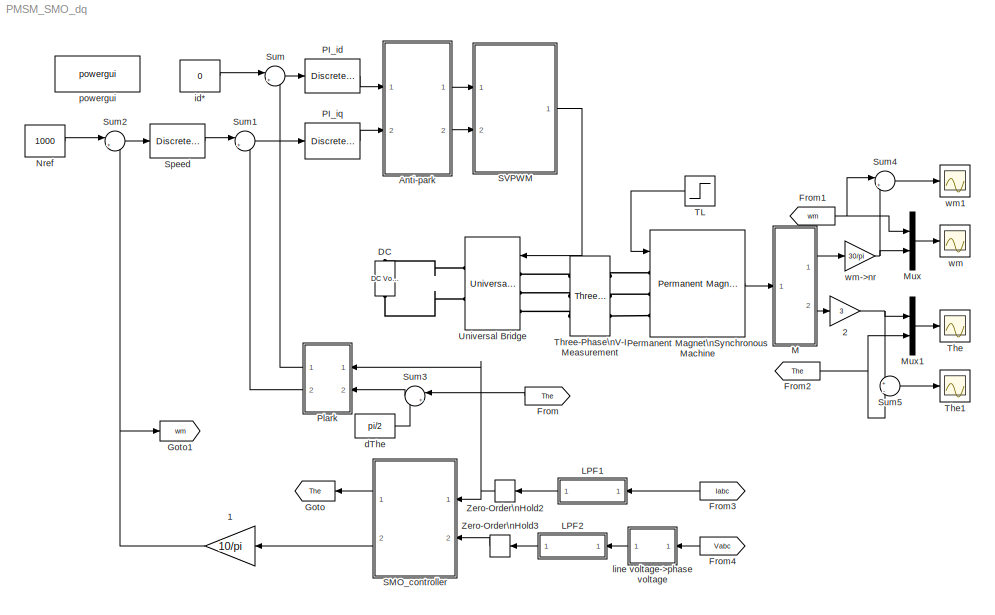
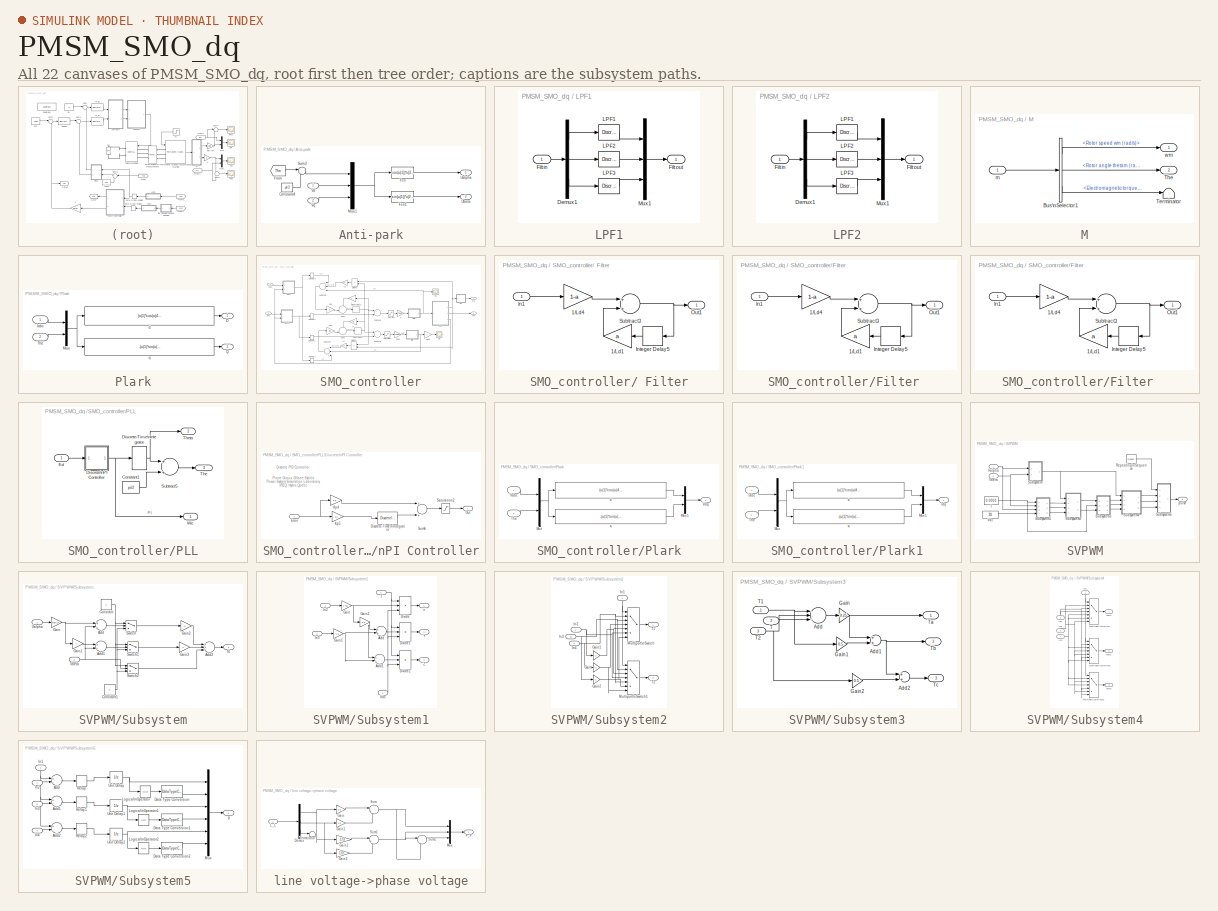
[diagram: thumbnail index - all 22 canvases of the model, root first then tree order]
MODEL PMSM_SMO_dq
KIND model
CONFIG InitFcn = Ts = 10e-6;\n\nRa = 0.011;\nLd = 0.0016;\nLq = 0.001;\nflux =0.077;\n\nm0 = 2;\nksild = 700;\nA = exp(-Ra/Ld*Ts);\nB = (1-A)/Ra;\nAq = exp(-Ra/Lq*Ts);\nBq = (1-Aq)/Ra;
BLOCK [Gain] 1
  Gain = 10/pi
  OutDataTypeStr = Inherit: Inherit via internal rule
  ParamDataTypeStr = Inherit: Inherit via internal rule
  SID = 613
  SaturateOnIntegerOverflow = off
BLOCK [Gain] 2
  Gain = 3
  OutDataTypeStr = Inherit: Inherit via internal rule
  ParamDataTypeStr = Inherit: Inherit via internal rule
  SID = 614
  SaturateOnIntegerOverflow = off
BLOCK [SubSystem] Anti-park
  Ports = [2, 2]
  RequestExecContextInheritance = off
  SID = 615
BLOCK [Constant] Anti-park/Constant4
  SID = 618
  Value = -pi/2
BLOCK [Fcn] Anti-park/Fcn
  Expr = cos(u[1])*u[2]-sin(u[1])*u[3]
  SID = 619
BLOCK [Fcn] Anti-park/Fcn1
  Expr = sin(u[1])*u[2]+cos(u[1])*u[3]
  SID = 620
BLOCK [From] Anti-park/From
  GotoTag = The
  SID = 621
  TagVisibility = global
BLOCK [Mux] Anti-park/Mux1
  DisplayOption = bar
  Inputs = 3
  Ports = [3, 1]
  SID = 622
BLOCK [Sum] Anti-park/Sum3
  IconShape = round
  InputSameDT = off
  Inputs = |++
  OutDataTypeStr = Inherit: Inherit via internal rule
  Ports = [2, 1]
  SID = 623
  SaturateOnIntegerOverflow = off
BLOCK [Outport] Anti-park/Ualpha
  IconDisplay = Port number
  SID = 624
BLOCK [Outport] Anti-park/Ubeta
  IconDisplay = Port number
  Port = 2
  SID = 625
BLOCK [Inport] Anti-park/Vd
  IconDisplay = Port number
  SID = 616
BLOCK [Inport] Anti-park/Vq
  IconDisplay = Port number
  Port = 2
  SID = 617
BLOCK [Reference] DC   REF=powerlib/Electrical\nSources/DC Voltage Source
  Amplitude = 311
  Measurements = None
  Ports = [0, 0, 0, 0, 0, 1, 1]
  SID = 626
  SourceBlock = powerlib/Electrical\nSources/DC Voltage Source
  SourceType = DC Voltage Source
BLOCK [From] From
  GotoTag = The
  SID = 627
  TagVisibility = global
BLOCK [From] From1
  GotoTag = wm
  SID = 628
  TagVisibility = global
BLOCK [From] From2
  GotoTag = The
  SID = 629
  TagVisibility = global
BLOCK [From] From3
  GotoTag = Iabc
  SID = 630
  TagVisibility = global
BLOCK [From] From4
  GotoTag = Vabc
  SID = 631
  TagVisibility = global
BLOCK [Goto] Goto
  GotoTag = The
  SID = 632
  TagVisibility = global
BLOCK [Goto] Goto1
  GotoTag = wm
  SID = 633
  TagVisibility = global
BLOCK [SubSystem] LPF1
  Ports = [1, 1]
  RequestExecContextInheritance = off
  SID = 634
BLOCK [Demux] LPF1/Demux1
  Outputs = 3
  Ports = [1, 3]
  SID = 636
BLOCK [Inport] LPF1/Filt in
  IconDisplay = Port number
  SID = 635
BLOCK [Outport] LPF1/Filt out
  IconDisplay = Port number
  SID = 641
BLOCK [Reference] LPF1/LPF1  REF=powerlib_extras/Discrete \nControl Blocks/Discrete\n1st-Order\nFilter
  FilterType = Lowpass
  Initialize = off
  PlotResponse = off
  Ports = [1, 1]
  SID = 637
  SourceBlock = powerlib_extras/Discrete \nControl Blocks/Discrete\n1st-Order\nFilter
  SourceType = Discrete 1st-Order Filter
  Tc = 1/(2*pi*wcc)
  Ts = Ts
  Vac_Init = [0.8 -25 60]
  Vdc_Init = -0.4
  param1 = [1 500 1]
BLOCK [Reference] LPF1/LPF2  REF=powerlib_extras/Discrete \nControl Blocks/Discrete\n1st-Order\nFilter
  FilterType = Lowpass
  Initialize = off
  PlotResponse = off
  Ports = [1, 1]
  SID = 638
  SourceBlock = powerlib_extras/Discrete \nControl Blocks/Discrete\n1st-Order\nFilter
  SourceType = Discrete 1st-Order Filter
  Tc = 1/(2*pi*wcc)
  Ts = Ts
  Vac_Init = [0.8 -25 60]
  Vdc_Init = -0.4
  param1 = [1 500 1]
BLOCK [Reference] LPF1/LPF3  REF=powerlib_extras/Discrete \nControl Blocks/Discrete\n1st-Order\nFilter
  FilterType = Lowpass
  Initialize = off
  PlotResponse = off
  Ports = [1, 1]
  SID = 639
  SourceBlock = powerlib_extras/Discrete \nControl Blocks/Discrete\n1st-Order\nFilter
  SourceType = Discrete 1st-Order Filter
  Tc = 1/(2*pi*wcc)
  Ts = Ts
  Vac_Init = [0.8 -25 60]
  Vdc_Init = -0.4
  param1 = [1 4000 1]
BLOCK [Mux] LPF1/Mux1
  DisplayOption = bar
  Inputs = 3
  Ports = [3, 1]
  SID = 640
BLOCK [SubSystem] LPF2
  Ports = [1, 1]
  RequestExecContextInheritance = off
  SID = 642
BLOCK [Demux] LPF2/Demux1
  Outputs = 3
  Ports = [1, 3]
  SID = 644
BLOCK [Inport] LPF2/Filt in
  IconDisplay = Port number
  SID = 643
BLOCK [Outport] LPF2/Filt out
  IconDisplay = Port number
  SID = 649
BLOCK [Reference] LPF2/LPF1  REF=powerlib_extras/Discrete \nControl Blocks/Discrete\n1st-Order\nFilter
  FilterType = Lowpass
  Initialize = off
  PlotResponse = off
  Ports = [1, 1]
  SID = 645
  SourceBlock = powerlib_extras/Discrete \nControl Blocks/Discrete\n1st-Order\nFilter
  SourceType = Discrete 1st-Order Filter
  Tc = 1/(2*pi*wcc)
  Ts = Ts
  Vac_Init = [0.8 -25 60]
  Vdc_Init = -0.4
  param1 = [1 500 1]
BLOCK [Reference] LPF2/LPF2  REF=powerlib_extras/Discrete \nControl Blocks/Discrete\n1st-Order\nFilter
  FilterType = Lowpass
  Initialize = off
  PlotResponse = off
  Ports = [1, 1]
  SID = 646
  SourceBlock = powerlib_extras/Discrete \nControl Blocks/Discrete\n1st-Order\nFilter
  SourceType = Discrete 1st-Order Filter
  Tc = 1/(2*pi*wcc)
  Ts = Ts
  Vac_Init = [0.8 -25 60]
  Vdc_Init = -0.4
  param1 = [1 500 1]
BLOCK [Reference] LPF2/LPF3  REF=powerlib_extras/Discrete \nControl Blocks/Discrete\n1st-Order\nFilter
  FilterType = Lowpass
  Initialize = off
  PlotResponse = off
  Ports = [1, 1]
  SID = 647
  SourceBlock = powerlib_extras/Discrete \nControl Blocks/Discrete\n1st-Order\nFilter
  SourceType = Discrete 1st-Order Filter
  Tc = 1/(2*pi*wcc)
  Ts = Ts
  Vac_Init = [0.8 -25 60]
  Vdc_Init = -0.4
  param1 = [1 4000 1]
BLOCK [Mux] LPF2/Mux1
  DisplayOption = bar
  Inputs = 3
  Ports = [3, 1]
  SID = 648
BLOCK [SubSystem] M
  Ports = [1, 2]
  RequestExecContextInheritance = off
  SID = 650
BLOCK [BusSelector] M/Bus\nSelector1
  OutputSignals = Rotor speed wm (rad/s),Rotor angle thetam (rad),Electromagnetic torque Te (N*m)
  Ports = [1, 3]
  SID = 653
BLOCK [Terminator] M/Terminator
  SID = 655
BLOCK [Outport] M/The
  IconDisplay = Port number
  Port = 2
  SID = 657
BLOCK [Inport] M/m
  IconDisplay = Port number
  SID = 651
BLOCK [Outport] M/wm
  IconDisplay = Port number
  SID = 656
BLOCK [Mux] Mux
  DisplayOption = bar
  Inputs = 2
  Ports = [2, 1]
  SID = 659
BLOCK [Mux] Mux1
  DisplayOption = bar
  Inputs = 2
  Ports = [2, 1]
  SID = 660
BLOCK [Constant] Nref
  SID = 661
  Value = 1000
BLOCK [Reference] PI_id   REF=powerlib_extras/Discrete \nControl Blocks/Discrete\nPI Controller
  Init = 0
  Ki = 0.011*20000
  Kp = 0.0016*20000
  Par_Limits = [250 -250]
  Ports = [1, 1]
  SID = 662
  SourceBlock = powerlib_extras/Discrete \nControl Blocks/Discrete\nPI Controller
  SourceType = Discrete PI Controller
  Ts = Ts
BLOCK [Reference] PI_iq  REF=powerlib_extras/Discrete \nControl Blocks/Discrete\nPI Controller
  Init = 0
  Ki = 0.011*20000
  Kp = 0.001*20000
  Par_Limits = [250 -250]
  Ports = [1, 1]
  SID = 663
  SourceBlock = powerlib_extras/Discrete \nControl Blocks/Discrete\nPI Controller
  SourceType = Discrete PI Controller
  Ts = Ts
BLOCK [Reference] Permanent Magnet\nSynchronous Machine  REF=powerlib/Machines/Permanent Magnet\nSynchronous Machine
  Flat = 120
  Flux = 0.077
  FluxDistribution = Sinusoidal
  Inductance = 8.5e-3
  InitialConditions = [0,0, 0,0]
  InitialConditions5ph = [0 0 0 0 0 0]
  La = 0.000835
  MachineConstant = Flux linkage established by magnets (V.s)
  MeasurementBus = off
  Mechanical = [0.0008 0 3]
  MechanicalLoad = Torque Tm
  NbPhases = 3
  PolePairs = 3
  Ports = [1, 1, 0, 0, 0, 3]
  PresetModel = No
  RefAngle = 90 degrees behind phase A axis (modified Park)
  Resistance = 0.011
  RotorType = Salient-pole
  SID = 664
  ShowDetailedParameters = on
  SourceBlock = powerlib/Machines/Permanent Magnet\nSynchronous Machine
  SourceType = Permanent Magnet Synchronous Machine
  TorqueCst = 0.3465
  TsBlock = -1
  TsPowergui = 0
  VoltageCst = 41.8988
  dqInductances = [0.0016,0.001]
BLOCK [SubSystem] Plark
  Ports = [2, 2]
  RequestExecContextInheritance = off
  SID = 665
BLOCK [Outport] Plark/D
  IconDisplay = Port number
  SID = 671
BLOCK [Inport] Plark/Iabc
  IconDisplay = Port number
  SID = 666
BLOCK [Mux] Plark/Mux
  DisplayOption = bar
  Inputs = 2
  Ports = [2, 1]
  SID = 668
BLOCK [Outport] Plark/Q
  IconDisplay = Port number
  Port = 2
  SID = 672
BLOCK [Inport] Plark/The
  IconDisplay = Port number
  Port = 2
  SID = 667
BLOCK [Fcn] Plark/d
  Expr = (u(1)*cos(u(4))+u(2)*cos(u(4)-2/3*pi)+u(3)*cos(u(4)+2/3*pi))*2/3
  SID = 669
BLOCK [Fcn] Plark/q
  Expr = -(u(1)*sin(u(4))+u(2)*sin(u(4)-2/3*pi)+u(3)*sin(u(4)+2/3*pi))*2/3
  SID = 670
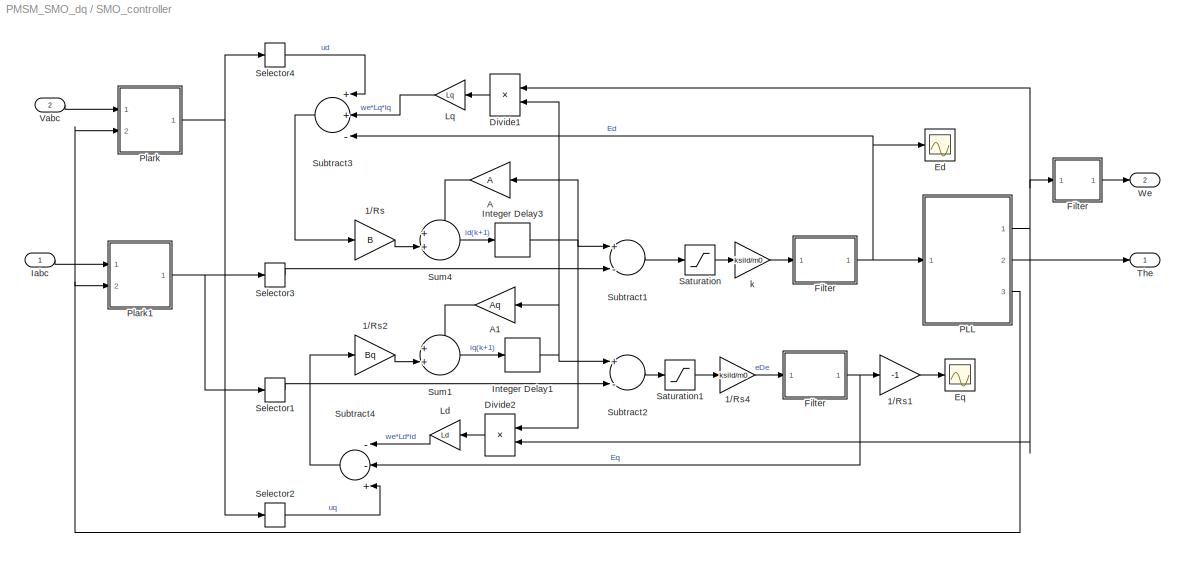
BLOCK [SubSystem] SMO_controller
  Ports = [2, 2]
  RequestExecContextInheritance = off
  SID = 673
BLOCK [SubSystem] SMO_controller/ Filter
  Ports = [1, 1]
  RequestExecContextInheritance = off
  SID = 676
BLOCK [Gain] SMO_controller/ Filter/1//Ld1
  Gain = a
  OutDataTypeStr = Inherit: Inherit via internal rule
  ParamDataTypeStr = Inherit: Inherit via internal rule
  SID = 678
  SaturateOnIntegerOverflow = off
BLOCK [Gain] SMO_controller/ Filter/1//Ld4
  Gain = 1-a
  OutDataTypeStr = Inherit: Inherit via internal rule
  ParamDataTypeStr = Inherit: Inherit via internal rule
  SID = 679
  SampleTime = Ts
  SaturateOnIntegerOverflow = off
BLOCK [Inport] SMO_controller/ Filter/In1
  IconDisplay = Port number
  SID = 677
BLOCK [Delay] SMO_controller/ Filter/Integer Delay5
  DelayLength = 1
  InputPortMap = u0
  InputProcessing = Inherited
  Ports = [1, 1]
  SID = 680
  SampleTime = Ts
BLOCK [Outport] SMO_controller/ Filter/Out1
  IconDisplay = Port number
  SID = 682
BLOCK [Sum] SMO_controller/ Filter/Subtract3
  InputSameDT = off
  OutDataTypeStr = Inherit: Inherit via internal rule
  Ports = [2, 1]
  SID = 681
  SaturateOnIntegerOverflow = off
BLOCK [Gain] SMO_controller/1//Rs
  Gain = B
  OutDataTypeStr = Inherit: Inherit via internal rule
  ParamDataTypeStr = Inherit: Inherit via internal rule
  SID = 683
  SaturateOnIntegerOverflow = off
BLOCK [Gain] SMO_controller/1//Rs1
  Gain = -1
  OutDataTypeStr = Inherit: Inherit via internal rule
  ParamDataTypeStr = Inherit: Inherit via internal rule
  SID = 895
  SaturateOnIntegerOverflow = off
BLOCK [Gain] SMO_controller/1//Rs2
  Gain = Bq
  OutDataTypeStr = Inherit: Inherit via internal rule
  ParamDataTypeStr = Inherit: Inherit via internal rule
  SID = 684
  SaturateOnIntegerOverflow = off
BLOCK [Gain] SMO_controller/1//Rs4
  Gain = ksild/m0
  OutDataTypeStr = Inherit: Inherit via internal rule
  ParamDataTypeStr = Inherit: Inherit via internal rule
  SID = 685
  SaturateOnIntegerOverflow = off
BLOCK [Gain] SMO_controller/A
  Gain = A
  OutDataTypeStr = Inherit: Inherit via internal rule
  ParamDataTypeStr = Inherit: Inherit via internal rule
  SID = 686
  SaturateOnIntegerOverflow = off
BLOCK [Gain] SMO_controller/A1
  Gain = Aq
  OutDataTypeStr = Inherit: Inherit via internal rule
  ParamDataTypeStr = Inherit: Inherit via internal rule
  SID = 687
  SaturateOnIntegerOverflow = off
BLOCK [Product] SMO_controller/Divide1
  InputSameDT = off
  Inputs = **
  OutDataTypeStr = Inherit: Inherit via internal rule
  Ports = [2, 1]
  RndMeth = Floor
  SID = 691
  SaturateOnIntegerOverflow = off
BLOCK [Product] SMO_controller/Divide2
  InputSameDT = off
  Inputs = **
  OutDataTypeStr = Inherit: Inherit via internal rule
  Ports = [2, 1]
  RndMeth = Floor
  SID = 692
  SaturateOnIntegerOverflow = off
BLOCK [Scope] SMO_controller/Ed
  DataFormat = StructureWithTime
  Floating = off
  LimitDataPoints = off
  NumInputPorts = 1
  Ports = [1]
  SID = 892
  SampleTime = 0
  SaveName = Ed
  SaveToWorkspace = on
  ShowLegends = off
  TimeRange = 0.1
  YMax = 60
  YMin = 30
  ZoomMode = xonly
BLOCK [Scope] SMO_controller/Eq
  DataFormat = StructureWithTime
  Floating = off
  LimitDataPoints = off
  NumInputPorts = 1
  Ports = [1]
  SID = 894
  SampleTime = 0
  SaveName = Eq
  SaveToWorkspace = on
  ShowLegends = off
  TimeRange = 0.1
  YMax = 60
  YMin = 30
  ZoomMode = xonly
BLOCK [SubSystem] SMO_controller/Filter 
  Ports = [1, 1]
  RequestExecContextInheritance = off
  SID = 693
BLOCK [SubSystem] SMO_controller/Filter  
  Ports = [1, 1]
  RequestExecContextInheritance = off
  SID = 700
BLOCK [Gain] SMO_controller/Filter  /1//Ld1
  Gain = a
  OutDataTypeStr = Inherit: Inherit via internal rule
  ParamDataTypeStr = Inherit: Inherit via internal rule
  SID = 702
  SaturateOnIntegerOverflow = off
BLOCK [Gain] SMO_controller/Filter  /1//Ld4
  Gain = 1-a
  OutDataTypeStr = Inherit: Inherit via internal rule
  ParamDataTypeStr = Inherit: Inherit via internal rule
  SID = 703
  SampleTime = Ts
  SaturateOnIntegerOverflow = off
BLOCK [Inport] SMO_controller/Filter  /In1
  IconDisplay = Port number
  SID = 701
BLOCK [Delay] SMO_controller/Filter  /Integer Delay5
  DelayLength = 1
  InputPortMap = u0
  InputProcessing = Inherited
  Ports = [1, 1]
  SID = 704
  SampleTime = Ts
BLOCK [Outport] SMO_controller/Filter  /Out1
  IconDisplay = Port number
  SID = 706
BLOCK [Sum] SMO_controller/Filter  /Subtract3
  InputSameDT = off
  OutDataTypeStr = Inherit: Inherit via internal rule
  Ports = [2, 1]
  SID = 705
  SaturateOnIntegerOverflow = off
BLOCK [Gain] SMO_controller/Filter /1//Ld1
  Gain = a
  OutDataTypeStr = Inherit: Inherit via internal rule
  ParamDataTypeStr = Inherit: Inherit via internal rule
  SID = 695
  SaturateOnIntegerOverflow = off
BLOCK [Gain] SMO_controller/Filter /1//Ld4
  Gain = 1-a
  OutDataTypeStr = Inherit: Inherit via internal rule
  ParamDataTypeStr = Inherit: Inherit via internal rule
  SID = 696
  SampleTime = Ts
  SaturateOnIntegerOverflow = off
BLOCK [Inport] SMO_controller/Filter /In1
  IconDisplay = Port number
  SID = 694
BLOCK [Delay] SMO_controller/Filter /Integer Delay5
  DelayLength = 1
  InputPortMap = u0
  InputProcessing = Inherited
  Ports = [1, 1]
  SID = 697
  SampleTime = Ts
BLOCK [Outport] SMO_controller/Filter /Out1
  IconDisplay = Port number
  SID = 699
BLOCK [Sum] SMO_controller/Filter /Subtract3
  InputSameDT = off
  OutDataTypeStr = Inherit: Inherit via internal rule
  Ports = [2, 1]
  SID = 698
  SaturateOnIntegerOverflow = off
BLOCK [Inport] SMO_controller/Iabc
  IconDisplay = Port number
  SID = 674
BLOCK [Delay] SMO_controller/Integer Delay1
  DelayLength = 1
  InputPortMap = u0
  InputProcessing = Inherited
  Ports = [1, 1]
  SID = 707
  SampleTime = Ts
BLOCK [Delay] SMO_controller/Integer Delay3
  DelayLength = 1
  InputPortMap = u0
  InputProcessing = Inherited
  Ports = [1, 1]
  SID = 708
  SampleTime = Ts
BLOCK [Gain] SMO_controller/Ld
  Gain = Ld
  OutDataTypeStr = Inherit: Inherit via internal rule
  ParamDataTypeStr = Inherit: Inherit via internal rule
  SID = 709
  SaturateOnIntegerOverflow = off
BLOCK [Gain] SMO_controller/Lq
  Gain = Lq
  OutDataTypeStr = Inherit: Inherit via internal rule
  ParamDataTypeStr = Inherit: Inherit via internal rule
  SID = 710
  SaturateOnIntegerOverflow = off
BLOCK [SubSystem] SMO_controller/PLL
  Ports = [1, 3]
  RequestExecContextInheritance = off
  SID = 887
BLOCK [Constant] SMO_controller/PLL/Constant1
  SID = 688
  Value = pi/2
BLOCK [DiscreteIntegrator] SMO_controller/PLL/Discrete-Time\nIntegrator
  Ports = [1, 1]
  SID = 690
  SampleTime = Ts
BLOCK [SubSystem] SMO_controller/PLL/Discrete\nPI Controller
  AncestorBlock = powerlib_extras/Discrete \nControl Blocks/Discrete\nPI Controller
  OpenFcn = power_openblockproxy();
  Ports = [1, 1]
  RequestExecContextInheritance = off
  SID = 689
BLOCK [DiscreteIntegrator] SMO_controller/PLL/Discrete\nPI Controller/Discrete-Time\nIntegrator
  LimitOutput = on
  LowerSaturationLimit = LowerLimit
  Ports = [1, 1]
  SID = 689:2
  SampleTime = Ts
  UpperSaturationLimit = UpperLimit
BLOCK [Inport] SMO_controller/PLL/Discrete\nPI Controller/Error
  IconDisplay = Port number
  SID = 689:1
BLOCK [Gain] SMO_controller/PLL/Discrete\nPI Controller/Kp4
  Gain = Kp
  SID = 689:3
BLOCK [Gain] SMO_controller/PLL/Discrete\nPI Controller/Kp5
  Gain = Ki
  SID = 689:4
BLOCK [Outport] SMO_controller/PLL/Discrete\nPI Controller/Out
  IconDisplay = Port number
  InitialOutput = 0
  SID = 689:7
BLOCK [Saturate] SMO_controller/PLL/Discrete\nPI Controller/Saturation2
  InputPortMap = u0
  LowerLimit = LowerLimit
  Ports = [1, 1]
  SID = 689:5
  UpperLimit = UpperLimit
BLOCK [Sum] SMO_controller/PLL/Discrete\nPI Controller/Sum6
  Ports = [2, 1]
  SID = 689:6
BLOCK [Inport] SMO_controller/PLL/Ed
  IconDisplay = Port number
  SID = 888
BLOCK [Sum] SMO_controller/PLL/Subtract5
  InputSameDT = off
  OutDataTypeStr = Inherit: Inherit via internal rule
  Ports = [2, 1]
  SID = 738
  SaturateOnIntegerOverflow = off
BLOCK [Outport] SMO_controller/PLL/The
  IconDisplay = Port number
  Port = 3
  SID = 891
BLOCK [Outport] SMO_controller/PLL/Theta
  IconDisplay = Port number
  Port = 2
  SID = 890
BLOCK [Outport] SMO_controller/PLL/We
  IconDisplay = Port number
  SID = 889
BLOCK [SubSystem] SMO_controller/Plark
  Ports = [2, 1]
  RequestExecContextInheritance = off
  SID = 711
BLOCK [Mux] SMO_controller/Plark/Mux
  DisplayOption = bar
  Inputs = 2
  Ports = [2, 1]
  SID = 714
BLOCK [Mux] SMO_controller/Plark/Mux1
  DisplayOption = bar
  Inputs = 2
  Ports = [2, 1]
  SID = 715
BLOCK [Inport] SMO_controller/Plark/The
  IconDisplay = Port number
  Port = 2
  SID = 713
BLOCK [Inport] SMO_controller/Plark/Vabc
  IconDisplay = Port number
  SID = 712
BLOCK [Outport] SMO_controller/Plark/Vdq
  IconDisplay = Port number
  SID = 718
BLOCK [Fcn] SMO_controller/Plark/d
  Expr = (u(1)*cos(u(4))+u(2)*cos(u(4)-2/3*pi)+u(3)*cos(u(4)+2/3*pi))*2/3
  SID = 716
BLOCK [Fcn] SMO_controller/Plark/q
  Expr = -(u(1)*sin(u(4))+u(2)*sin(u(4)-2/3*pi)+u(3)*sin(u(4)+2/3*pi))*2/3
  SID = 717
BLOCK [SubSystem] SMO_controller/Plark1
  Ports = [2, 1]
  RequestExecContextInheritance = off
  SID = 719
BLOCK [Inport] SMO_controller/Plark1/Iabc
  IconDisplay = Port number
  SID = 720
BLOCK [Outport] SMO_controller/Plark1/Idq
  IconDisplay = Port number
  SID = 726
BLOCK [Mux] SMO_controller/Plark1/Mux
  DisplayOption = bar
  Inputs = 2
  Ports = [2, 1]
  SID = 722
BLOCK [Mux] SMO_controller/Plark1/Mux1
  DisplayOption = bar
  Inputs = 2
  Ports = [2, 1]
  SID = 723
BLOCK [Inport] SMO_controller/Plark1/The
  IconDisplay = Port number
  Port = 2
  SID = 721
BLOCK [Fcn] SMO_controller/Plark1/d
  Expr = (u(1)*cos(u(4))+u(2)*cos(u(4)-2/3*pi)+u(3)*cos(u(4)+2/3*pi))*2/3
  SID = 724
BLOCK [Fcn] SMO_controller/Plark1/q
  Expr = -(u(1)*sin(u(4))+u(2)*sin(u(4)-2/3*pi)+u(3)*sin(u(4)+2/3*pi))*2/3
  SID = 725
BLOCK [Saturate] SMO_controller/Saturation
  InputPortMap = u0
  LowerLimit = -m0
  Ports = [1, 1]
  SID = 727
  UpperLimit = m0
BLOCK [Saturate] SMO_controller/Saturation1
  InputPortMap = u0
  LowerLimit = -m0
  Ports = [1, 1]
  SID = 728
  UpperLimit = m0
BLOCK [Selector] SMO_controller/Selector1
  Indices = [2 ]
  InputPortWidth = 2
  Ports = [1, 1]
  SID = 730
BLOCK [Selector] SMO_controller/Selector2
  Indices = [2 ]
  InputPortWidth = 2
  Ports = [1, 1]
  SID = 731
BLOCK [Selector] SMO_controller/Selector3
  Indices = [1 ]
  InputPortWidth = 2
  Ports = [1, 1]
  SID = 732
BLOCK [Selector] SMO_controller/Selector4
  Indices = [1 ]
  InputPortWidth = 2
  Ports = [1, 1]
  SID = 733
BLOCK [Sum] SMO_controller/Subtract1
  InputSameDT = off
  Inputs = +-
  OutDataTypeStr = Inherit: Inherit via internal rule
  Ports = [2, 1]
  SID = 734
  SaturateOnIntegerOverflow = off
BLOCK [Sum] SMO_controller/Subtract2
  InputSameDT = off
  Inputs = +-
  OutDataTypeStr = Inherit: Inherit via internal rule
  Ports = [2, 1]
  SID = 735
  SaturateOnIntegerOverflow = off
BLOCK [Sum] SMO_controller/Subtract3
  InputSameDT = off
  Inputs = ++-
  OutDataTypeStr = Inherit: Inherit via internal rule
  Ports = [3, 1]
  SID = 736
  SaturateOnIntegerOverflow = off
BLOCK [Sum] SMO_controller/Subtract4
  InputSameDT = off
  Inputs = --+
  OutDataTypeStr = Inherit: Inherit via internal rule
  Ports = [3, 1]
  SID = 737
  SaturateOnIntegerOverflow = off
BLOCK [Sum] SMO_controller/Sum1
  IconShape = round
  InputSameDT = off
  Inputs = ++|
  OutDataTypeStr = Inherit: Inherit via internal rule
  Ports = [2, 1]
  SID = 739
  SaturateOnIntegerOverflow = off
BLOCK [Sum] SMO_controller/Sum4
  IconShape = round
  InputSameDT = off
  Inputs = ++|
  OutDataTypeStr = Inherit: Inherit via internal rule
  Ports = [2, 1]
  SID = 740
  SaturateOnIntegerOverflow = off
BLOCK [Outport] SMO_controller/The
  IconDisplay = Port number
  SID = 742
BLOCK [Inport] SMO_controller/Vabc
  IconDisplay = Port number
  Port = 2
  SID = 675
BLOCK [Outport] SMO_controller/We
  IconDisplay = Port number
  Port = 2
  SID = 743
BLOCK [Gain] SMO_controller/k
  Gain = ksild/m0
  OutDataTypeStr = Inherit: Inherit via internal rule
  ParamDataTypeStr = Inherit: Inherit via internal rule
  SID = 741
  SaturateOnIntegerOverflow = off
BLOCK [SubSystem] SVPWM
  Ports = [2, 1]
  RequestExecContextInheritance = off
  SID = 745
BLOCK [Reference] SVPWM/Repeating\nSequence  REF=simulink/Sources/Repeating\nSequence
  Ports = [0, 1]
  SID = 748
  SourceBlock = simulink/Sources/Repeating\nSequence
  SourceType = Repeating table
  rep_seq_t = [0 0.00005 0.0001]
  rep_seq_y = [0 0.00005 0]
BLOCK [SubSystem] SVPWM/Subsystem
  Ports = [2, 1]
  RequestExecContextInheritance = off
  SID = 749
BLOCK [Sum] SVPWM/Subsystem/Add
  InputSameDT = off
  Inputs = +-
  OutDataTypeStr = Inherit: Inherit via internal rule
  Ports = [2, 1]
  SID = 752
  SaturateOnIntegerOverflow = off
BLOCK [Sum] SVPWM/Subsystem/Add1
  InputSameDT = off
  Inputs = +-
  OutDataTypeStr = Inherit: Inherit via internal rule
  Ports = [2, 1]
  SID = 753
  SaturateOnIntegerOverflow = off
BLOCK [Sum] SVPWM/Subsystem/Add2
  InputSameDT = off
  Inputs = +++
  OutDataTypeStr = Inherit: Inherit via internal rule
  Ports = [3, 1]
  SID = 754
  SaturateOnIntegerOverflow = off
BLOCK [Constant] SVPWM/Subsystem/Constant
  SID = 755
BLOCK [Constant] SVPWM/Subsystem/Constant1
  SID = 756
  Value = 0
BLOCK [Gain] SVPWM/Subsystem/Gain
  Gain = sqrt(3)
  OutDataTypeStr = Inherit: Inherit via internal rule
  ParamDataTypeStr = Inherit: Inherit via internal rule
  SID = 757
  SaturateOnIntegerOverflow = off
BLOCK [Gain] SVPWM/Subsystem/Gain1
  Gain = -1
  OutDataTypeStr = Inherit: Inherit via internal rule
  ParamDataTypeStr = Inherit: Inherit via internal rule
  SID = 758
  SaturateOnIntegerOverflow = off
BLOCK [Gain] SVPWM/Subsystem/Gain2
  Gain = 2
  OutDataTypeStr = Inherit: Inherit via internal rule
  ParamDataTypeStr = Inherit: Inherit via internal rule
  SID = 759
  SaturateOnIntegerOverflow = off
BLOCK [Gain] SVPWM/Subsystem/Gain3
  Gain = 4
  OutDataTypeStr = Inherit: Inherit via internal rule
  ParamDataTypeStr = Inherit: Inherit via internal rule
  SID = 760
  SaturateOnIntegerOverflow = off
BLOCK [Outport] SVPWM/Subsystem/N
  IconDisplay = Port number
  SID = 764
BLOCK [Switch] SVPWM/Subsystem/Switch
  Criteria = u2 > Threshold
  InputSameDT = off
  SID = 761
  SaturateOnIntegerOverflow = off
BLOCK [Switch] SVPWM/Subsystem/Switch1
  Criteria = u2 > Threshold
  InputSameDT = off
  SID = 762
  SaturateOnIntegerOverflow = off
BLOCK [Switch] SVPWM/Subsystem/Switch2
  Criteria = u2 > Threshold
  InputSameDT = off
  SID = 763
  SaturateOnIntegerOverflow = off
BLOCK [Inport] SVPWM/Subsystem/Valpha
  IconDisplay = Port number
  SID = 750
BLOCK [Inport] SVPWM/Subsystem/Vbeta
  IconDisplay = Port number
  Port = 2
  SID = 751
BLOCK [SubSystem] SVPWM/Subsystem1
  Ports = [4, 3]
  RequestExecContextInheritance = off
  SID = 766
BLOCK [Sum] SVPWM/Subsystem1/Add
  InputSameDT = off
  OutDataTypeStr = Inherit: Inherit via internal rule
  Ports = [2, 1]
  SID = 771
  SaturateOnIntegerOverflow = off
BLOCK [Sum] SVPWM/Subsystem1/Add1
  InputSameDT = off
  Inputs = +-
  OutDataTypeStr = Inherit: Inherit via internal rule
  Ports = [2, 1]
  SID = 772
  SaturateOnIntegerOverflow = off
BLOCK [Product] SVPWM/Subsystem1/Divide
  InputSameDT = off
  Inputs = **/
  OutDataTypeStr = Inherit: Inherit via internal rule
  Ports = [3, 1]
  RndMeth = Floor
  SID = 773
  SaturateOnIntegerOverflow = off
BLOCK [Product] SVPWM/Subsystem1/Divide1
  InputSameDT = off
  Inputs = **/
  OutDataTypeStr = Inherit: Inherit via internal rule
  Ports = [3, 1]
  RndMeth = Floor
  SID = 774
  SaturateOnIntegerOverflow = off
BLOCK [Product] SVPWM/Subsystem1/Divide2
  InputSameDT = off
  Inputs = **/
  OutDataTypeStr = Inherit: Inherit via internal rule
  Ports = [3, 1]
  RndMeth = Floor
  SID = 775
  SaturateOnIntegerOverflow = off
BLOCK [Gain] SVPWM/Subsystem1/Gain
  Gain = 1.732
  OutDataTypeStr = Inherit: Inherit via internal rule
  ParamDataTypeStr = Inherit: Inherit via internal rule
  SID = 776
  SaturateOnIntegerOverflow = off
BLOCK [Gain] SVPWM/Subsystem1/Gain1
  Gain = 1.5
  OutDataTypeStr = Inherit: Inherit via internal rule
  ParamDataTypeStr = Inherit: Inherit via internal rule
  SID = 777
  SaturateOnIntegerOverflow = off
BLOCK [Gain] SVPWM/Subsystem1/Gain2
  Gain = 0.5
  OutDataTypeStr = Inherit: Inherit via internal rule
  ParamDataTypeStr = Inherit: Inherit via internal rule
  SID = 778
  SaturateOnIntegerOverflow = off
BLOCK [Inport] SVPWM/Subsystem1/In2
  IconDisplay = Port number
  Port = 2
  SID = 768
BLOCK [Inport] SVPWM/Subsystem1/In3
  IconDisplay = Port number
  Port = 3
  SID = 769
BLOCK [Inport] SVPWM/Subsystem1/T
  IconDisplay = Port number
  SID = 767
BLOCK [Inport] SVPWM/Subsystem1/Vdc
  IconDisplay = Port number
  Port = 4
  SID = 770
BLOCK [Outport] SVPWM/Subsystem1/Y
  IconDisplay = Port number
  Port = 2
  SID = 780
BLOCK [Outport] SVPWM/Subsystem1/Z
  IconDisplay = Port number
  Port = 3
  SID = 781
BLOCK [Outport] SVPWM/Subsystem1/x
  IconDisplay = Port number
  SID = 779
BLOCK [SubSystem] SVPWM/Subsystem2
  Ports = [4, 2]
  RequestExecContextInheritance = off
  SID = 782
BLOCK [Gain] SVPWM/Subsystem2/Gain
  Gain = -1
  OutDataTypeStr = Inherit: Inherit via internal rule
  ParamDataTypeStr = Inherit: Inherit via internal rule
  SID = 787
  SaturateOnIntegerOverflow = off
BLOCK [Gain] SVPWM/Subsystem2/Gain1
  Gain = -1
  OutDataTypeStr = Inherit: Inherit via internal rule
  ParamDataTypeStr = Inherit: Inherit via internal rule
  SID = 788
  SaturateOnIntegerOverflow = off
BLOCK [Gain] SVPWM/Subsystem2/Gain2
  Gain = -1
  OutDataTypeStr = Inherit: Inherit via internal rule
  ParamDataTypeStr = Inherit: Inherit via internal rule
  SID = 789
  SaturateOnIntegerOverflow = off
BLOCK [Inport] SVPWM/Subsystem2/In1
  IconDisplay = Port number
  SID = 783
BLOCK [Inport] SVPWM/Subsystem2/In2
  IconDisplay = Port number
  Port = 2
  SID = 784
BLOCK [Inport] SVPWM/Subsystem2/In3
  IconDisplay = Port number
  Port = 3
  SID = 785
BLOCK [Inport] SVPWM/Subsystem2/In4
  IconDisplay = Port number
  Port = 4
  SID = 786
BLOCK [MultiPortSwitch] SVPWM/Subsystem2/Multiport\nSwitch
  InputSameDT = off
  Inputs = 6
  Ports = [7, 1]
  SID = 790
  SaturateOnIntegerOverflow = off
BLOCK [MultiPortSwitch] SVPWM/Subsystem2/Multiport\nSwitch1
  InputSameDT = off
  Inputs = 6
  Ports = [7, 1]
  SID = 791
  SaturateOnIntegerOverflow = off
BLOCK [Outport] SVPWM/Subsystem2/T1
  IconDisplay = Port number
  SID = 792
BLOCK [Outport] SVPWM/Subsystem2/T2
  IconDisplay = Port number
  Port = 2
  SID = 793
BLOCK [SubSystem] SVPWM/Subsystem3
  Ports = [3, 3]
  RequestExecContextInheritance = off
  SID = 794
BLOCK [Sum] SVPWM/Subsystem3/Add
  InputSameDT = off
  Inputs = --+
  OutDataTypeStr = Inherit: Inherit via internal rule
  Ports = [3, 1]
  SID = 798
  SaturateOnIntegerOverflow = off
BLOCK [Sum] SVPWM/Subsystem3/Add1
  InputSameDT = off
  OutDataTypeStr = Inherit: Inherit via internal rule
  Ports = [2, 1]
  SID = 799
  SaturateOnIntegerOverflow = off
BLOCK [Sum] SVPWM/Subsystem3/Add2
  InputSameDT = off
  OutDataTypeStr = Inherit: Inherit via internal rule
  Ports = [2, 1]
  SID = 800
  SaturateOnIntegerOverflow = off
BLOCK [Gain] SVPWM/Subsystem3/Gain
  Gain = 0.25
  OutDataTypeStr = Inherit: Inherit via internal rule
  ParamDataTypeStr = Inherit: Inherit via internal rule
  SID = 801
  SaturateOnIntegerOverflow = off
BLOCK [Gain] SVPWM/Subsystem3/Gain1
  Gain = 0.5
  OutDataTypeStr = Inherit: Inherit via internal rule
  ParamDataTypeStr = Inherit: Inherit via internal rule
  SID = 802
  SaturateOnIntegerOverflow = off
BLOCK [Gain] SVPWM/Subsystem3/Gain2
  Gain = 0.5
  OutDataTypeStr = Inherit: Inherit via internal rule
  ParamDataTypeStr = Inherit: Inherit via internal rule
  SID = 803
  SaturateOnIntegerOverflow = off
BLOCK [Inport] SVPWM/Subsystem3/T
  IconDisplay = Port number
  Port = 2
  SID = 796
BLOCK [Inport] SVPWM/Subsystem3/T1
  IconDisplay = Port number
  SID = 795
BLOCK [Inport] SVPWM/Subsystem3/T2
  IconDisplay = Port number
  Port = 3
  SID = 797
BLOCK [Outport] SVPWM/Subsystem3/Ta
  IconDisplay = Port number
  SID = 804
BLOCK [Outport] SVPWM/Subsystem3/Tb
  IconDisplay = Port number
  Port = 2
  SID = 805
BLOCK [Outport] SVPWM/Subsystem3/Tc
  IconDisplay = Port number
  Port = 3
  SID = 806
BLOCK [SubSystem] SVPWM/Subsystem4
  Ports = [4, 3]
  RequestExecContextInheritance = off
  SID = 807
BLOCK [Inport] SVPWM/Subsystem4/In1
  IconDisplay = Port number
  SID = 808
BLOCK [Inport] SVPWM/Subsystem4/In2
  IconDisplay = Port number
  Port = 2
  SID = 809
BLOCK [Inport] SVPWM/Subsystem4/In3
  IconDisplay = Port number
  Port = 3
  SID = 810
BLOCK [Inport] SVPWM/Subsystem4/In4
  IconDisplay = Port number
  Port = 4
  SID = 811
BLOCK [MultiPortSwitch] SVPWM/Subsystem4/Multiport\nSwitch
  InputSameDT = off
  Inputs = 6
  Ports = [7, 1]
  SID = 812
  SaturateOnIntegerOverflow = off
BLOCK [MultiPortSwitch] SVPWM/Subsystem4/Multiport\nSwitch1
  InputSameDT = off
  Inputs = 6
  Ports = [7, 1]
  SID = 813
  SaturateOnIntegerOverflow = off
BLOCK [MultiPortSwitch] SVPWM/Subsystem4/Multiport\nSwitch2
  InputSameDT = off
  Inputs = 6
  Ports = [7, 1]
  SID = 814
  SaturateOnIntegerOverflow = off
BLOCK [Outport] SVPWM/Subsystem4/Tcm1
  IconDisplay = Port number
  SID = 815
BLOCK [Outport] SVPWM/Subsystem4/Tcm2
  IconDisplay = Port number
  Port = 2
  SID = 816
BLOCK [Outport] SVPWM/Subsystem4/Tcm3
  IconDisplay = Port number
  Port = 3
  SID = 817
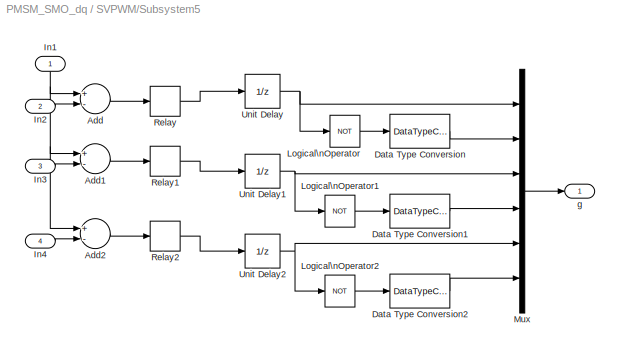
BLOCK [SubSystem] SVPWM/Subsystem5
  Ports = [4, 1]
  RequestExecContextInheritance = off
  SID = 818
BLOCK [Sum] SVPWM/Subsystem5/Add
  InputSameDT = off
  Inputs = +-
  OutDataTypeStr = Inherit: Inherit via internal rule
  Ports = [2, 1]
  SID = 823
  SaturateOnIntegerOverflow = off
BLOCK [Sum] SVPWM/Subsystem5/Add1
  InputSameDT = off
  Inputs = +-
  OutDataTypeStr = Inherit: Inherit via internal rule
  Ports = [2, 1]
  SID = 824
  SaturateOnIntegerOverflow = off
BLOCK [Sum] SVPWM/Subsystem5/Add2
  InputSameDT = off
  Inputs = +-
  OutDataTypeStr = Inherit: Inherit via internal rule
  Ports = [2, 1]
  SID = 825
  SaturateOnIntegerOverflow = off
BLOCK [DataTypeConversion] SVPWM/Subsystem5/Data Type Conversion
  OutDataTypeStr = double
  RndMeth = Floor
  SID = 826
  SaturateOnIntegerOverflow = off
BLOCK [DataTypeConversion] SVPWM/Subsystem5/Data Type Conversion1
  OutDataTypeStr = double
  RndMeth = Floor
  SID = 827
  SaturateOnIntegerOverflow = off
BLOCK [DataTypeConversion] SVPWM/Subsystem5/Data Type Conversion2
  OutDataTypeStr = double
  RndMeth = Floor
  SID = 828
  SaturateOnIntegerOverflow = off
BLOCK [Inport] SVPWM/Subsystem5/In1
  IconDisplay = Port number
  SID = 819
BLOCK [Inport] SVPWM/Subsystem5/In2
  IconDisplay = Port number
  Port = 2
  SID = 820
BLOCK [Inport] SVPWM/Subsystem5/In3
  IconDisplay = Port number
  Port = 3
  SID = 821
BLOCK [Inport] SVPWM/Subsystem5/In4
  IconDisplay = Port number
  Port = 4
  SID = 822
BLOCK [Logic] SVPWM/Subsystem5/Logical\nOperator
  AllPortsSameDT = off
  Operator = NOT
  OutDataTypeStr = boolean
  Ports = [1, 1]
  SID = 829
BLOCK [Logic] SVPWM/Subsystem5/Logical\nOperator1
  AllPortsSameDT = off
  Operator = NOT
  OutDataTypeStr = boolean
  Ports = [1, 1]
  SID = 830
BLOCK [Logic] SVPWM/Subsystem5/Logical\nOperator2
  AllPortsSameDT = off
  Operator = NOT
  OutDataTypeStr = boolean
  Ports = [1, 1]
  SID = 831
BLOCK [Mux] SVPWM/Subsystem5/Mux
  DisplayOption = bar
  Inputs = 6
  Ports = [6, 1]
  SID = 832
BLOCK [Relay] SVPWM/Subsystem5/Relay
  OffSwitchValue = -eps
  SID = 833
BLOCK [Relay] SVPWM/Subsystem5/Relay1
  OffSwitchValue = -eps
  SID = 834
BLOCK [Relay] SVPWM/Subsystem5/Relay2
  OffSwitchValue = -eps
  SID = 835
BLOCK [UnitDelay] SVPWM/Subsystem5/Unit Delay
  SID = 836
  SampleTime = -1
BLOCK [UnitDelay] SVPWM/Subsystem5/Unit Delay1
  SID = 837
  SampleTime = -1
BLOCK [UnitDelay] SVPWM/Subsystem5/Unit Delay2
  SID = 838
  SampleTime = -1
BLOCK [Outport] SVPWM/Subsystem5/g
  IconDisplay = Port number
  SID = 839
BLOCK [Constant] SVPWM/T
  SID = 840
  Value = 0.0001
BLOCK [Inport] SVPWM/Valpha
  IconDisplay = Port number
  SID = 746
BLOCK [Inport] SVPWM/Vbeta
  IconDisplay = Port number
  Port = 2
  SID = 747
BLOCK [Constant] SVPWM/Vdc
  SID = 841
  Value = 311
BLOCK [Outport] SVPWM/pulse
  IconDisplay = Port number
  SID = 842
BLOCK [Reference] Speed   REF=powerlib_extras/Discrete \nControl Blocks/Discrete\nPI Controller
  Init = 0
  Ki = 1
  Kp = 0.02
  Par_Limits = [300 -300]
  Ports = [1, 1]
  SID = 843
  SourceBlock = powerlib_extras/Discrete \nControl Blocks/Discrete\nPI Controller
  SourceType = Discrete PI Controller
  Ts = Ts
BLOCK [Sum] Sum
  IconShape = round
  InputSameDT = off
  Inputs = |+-
  OutDataTypeStr = Inherit: Inherit via internal rule
  Ports = [2, 1]
  SID = 844
  SaturateOnIntegerOverflow = off
BLOCK [Sum] Sum1
  IconShape = round
  InputSameDT = off
  Inputs = |+-
  OutDataTypeStr = Inherit: Inherit via internal rule
  Ports = [2, 1]
  SID = 845
  SaturateOnIntegerOverflow = off
BLOCK [Sum] Sum2
  IconShape = round
  InputSameDT = off
  Inputs = |+-
  OutDataTypeStr = Inherit: Inherit via internal rule
  Ports = [2, 1]
  SID = 846
  SaturateOnIntegerOverflow = off
BLOCK [Sum] Sum3
  IconShape = round
  InputSameDT = off
  Inputs = |+-
  OutDataTypeStr = Inherit: Inherit via internal rule
  Ports = [2, 1]
  SID = 847
  SaturateOnIntegerOverflow = off
BLOCK [Sum] Sum4
  IconShape = round
  InputSameDT = off
  Inputs = |+-
  OutDataTypeStr = Inherit: Inherit via internal rule
  Ports = [2, 1]
  SID = 848
  SaturateOnIntegerOverflow = off
BLOCK [Sum] Sum5
  IconShape = round
  InputSameDT = off
  Inputs = +|-
  OutDataTypeStr = Inherit: Inherit via internal rule
  Ports = [2, 1]
  SID = 849
  SaturateOnIntegerOverflow = off
BLOCK [Step] TL
  After = 1*0
  SID = 850
  SampleTime = 0
  Time = 0.5
BLOCK [Scope] The
  DataFormat = StructureWithTime
  Floating = off
  LimitDataPoints = off
  NumInputPorts = 1
  Ports = [1]
  SID = 851
  SampleTime = 0
  SaveName = The
  SaveToWorkspace = on
  ShowLegends = off
  TimeRange = 0.1
  YMax = 60
  YMin = 30
  ZoomMode = xonly
BLOCK [Scope] The1
  DataFormat = StructureWithTime
  Floating = off
  LimitDataPoints = off
  NumInputPorts = 1
  Ports = [1]
  SID = 852
  SampleTime = 0
  SaveName = The1
  SaveToWorkspace = on
  ShowLegends = off
  TimeRange = 0.1
  YMax = 580
  YMin = 460
  ZoomMode = xonly
BLOCK [Reference] Three-Phase\nV-I Measurement  REF=powerlib/Measurements/Three-Phase\nV-I Measurement
  CurrentMeasurement = yes
  Ipu = off
  LabelI = Iabc
  LabelV = Vabc
  OutputType = Complex
  PSBequivalent = 0
  Pbase = 100e6
  PhasorSimulation = off
  Ports = [0, 0, 0, 0, 0, 3, 3]
  SID = 853
  SetLabelI = on
  SetLabelV = on
  SourceBlock = powerlib/Measurements/Three-Phase\nV-I Measurement
  SourceType = Three-Phase VI Measurement
  Vbase = 500e3
  VoltageMeasurement = phase-to-phase
  Vpu = off
  VpuLL = off
BLOCK [Reference] Universal Bridge  REF=powerlib/Power\nElectronics/Universal Bridge
  Arms = 3
  Device = IGBT / Diodes
  ForwardVoltage = 0
  ForwardVoltages = [  0  0  ]
  GTOparameters = [ 10e-6 , 20e-6 ]
  IGBTparameters = [ 1e-6 , 2e-6 ]
  Lon = 0
  Measurements = None
  Measurements_2 = None
  Ports = [1, 0, 0, 0, 0, 3, 2]
  Ron = 1e-3
  SID = 854
  SnubberCapacitance = inf
  SnubberResistance = 1e5
  SourceBlock = powerlib/Power\nElectronics/Universal Bridge
  SourceType = Universal Bridge
  converterType = Rectifier
BLOCK [ZeroOrderHold] Zero-Order\nHold2
  SID = 855
  SampleTime = Ts
BLOCK [ZeroOrderHold] Zero-Order\nHold3
  SID = 856
  SampleTime = Ts
BLOCK [Constant] dThe
  SID = 857
  Value = pi/2
BLOCK [Constant] id*
  SID = 858
  Value = 0
BLOCK [SubSystem] line voltage->phase voltage
  Ports = [1, 1]
  RequestExecContextInheritance = off
  SID = 859
BLOCK [Demux] line voltage->phase voltage/Demux
  DisplayOption = bar
  Outputs = 3
  Ports = [1, 3]
  SID = 861
BLOCK [Gain] line voltage->phase voltage/Gain
  Gain = 2/3
  OutDataTypeStr = Inherit: Inherit via internal rule
  ParamDataTypeStr = Inherit: Inherit via internal rule
  SID = 862
  SaturateOnIntegerOverflow = off
BLOCK [Gain] line voltage->phase voltage/Gain1
  Gain = 1/3
  OutDataTypeStr = Inherit: Inherit via internal rule
  ParamDataTypeStr = Inherit: Inherit via internal rule
  SID = 863
  SaturateOnIntegerOverflow = off
BLOCK [Gain] line voltage->phase voltage/Gain2
  Gain = -1/3
  OutDataTypeStr = Inherit: Inherit via internal rule
  ParamDataTypeStr = Inherit: Inherit via internal rule
  SID = 864
  SaturateOnIntegerOverflow = off
BLOCK [Gain] line voltage->phase voltage/Gain3
  Gain = 1/3
  OutDataTypeStr = Inherit: Inherit via internal rule
  ParamDataTypeStr = Inherit: Inherit via internal rule
  SID = 865
  SaturateOnIntegerOverflow = off
BLOCK [Inport] line voltage->phase voltage/L_L
  IconDisplay = Port number
  SID = 860
BLOCK [Mux] line voltage->phase voltage/Mux
  DisplayOption = bar
  Inputs = 3
  Ports = [3, 1]
  SID = 866
BLOCK [Outport] line voltage->phase voltage/P_P
  IconDisplay = Port number
  SID = 871
BLOCK [Sum] line voltage->phase voltage/Sum
  IconShape = round
  InputSameDT = off
  Inputs = |++
  OutDataTypeStr = Inherit: Inherit via internal rule
  Ports = [2, 1]
  SID = 867
  SaturateOnIntegerOverflow = off
BLOCK [Sum] line voltage->phase voltage/Sum1
  IconShape = round
  InputSameDT = off
  Inputs = |++
  OutDataTypeStr = Inherit: Inherit via internal rule
  Ports = [2, 1]
  SID = 868
  SaturateOnIntegerOverflow = off
BLOCK [Sum] line voltage->phase voltage/Sum2
  IconShape = round
  InputSameDT = off
  Inputs = |--
  OutDataTypeStr = Inherit: Inherit via internal rule
  Ports = [2, 1]
  SID = 869
  SaturateOnIntegerOverflow = off
BLOCK [Terminator] line voltage->phase voltage/Terminator
  SID = 870
BLOCK [Reference] powergui  REF=powerlib/powergui
  DisableRonSwitches = off
  DisableSnubberDevices = off
  DisableVfSwitches = off
  DisplayEquations = off
  DisplayStyle = 1
  EnableUseOfTLC = off
  ErrMax = 1e-4
  Frange = [0:2:500]
  FreqAxis = off
  FunctionMessages = off
  HookPort = off
  Interpol = off
  Iterations = 50
  MaxFrequency = 1000
  Pbase = 100e6
  Ports = []
  ResistiveCurrentMeasurement = off
  RestoreLinks = warning
  RmsSteady = 1
  SID = 872
  SPID = off
  SampleTime = Ts
  ShowGrid = off
  SolverType = Tustin/Backward Euler (TBE)
  SourceBlock = powerlib/powergui
  SourceType = PSB option menu block
  StartTime = 0.0
  SwTol = 0
  Ts = 0
  UnitsV = kV
  UnitsW = MW
  UserData = DataTag0
  UserDataPersistent = on
  Xlog = on
  Ylog = off
  ZoomFFT = off
  cycles = 1
  display = off
  echomessages = off
  frequency = 60
  frequencyindice = 0
  frequencyindicesteady = 1
  fundamental = 60
  methode = off
  save = off
  structure = 0
  variable = ZData
  x0status = blocks
BLOCK [Scope] wm
  DataFormat = StructureWithTime
  Floating = off
  LimitDataPoints = off
  NumInputPorts = 1
  Ports = [1]
  SID = 873
  SampleTime = 0
  SaveName = wm
  SaveToWorkspace = on
  ShowLegends = off
  TimeRange = 0.1
  YMax = 1010
  YMin = 992
  ZoomMode = xonly
BLOCK [Gain] wm->nr
  Gain = 30/pi
  OutDataTypeStr = Inherit: Inherit via internal rule
  ParamDataTypeStr = Inherit: Inherit via internal rule
  SID = 874
  SaturateOnIntegerOverflow = off
BLOCK [Scope] wm1
  DataFormat = StructureWithTime
  Floating = off
  LimitDataPoints = off
  NumInputPorts = 1
  Ports = [1]
  SID = 875
  SampleTime = 0
  SaveName = wm1
  SaveToWorkspace = on
  ShowLegends = off
  TimeRange = 0.1
  YMax = 8
  YMin = -10
  ZoomMode = xonly
ANNOTATION SMO_controller/PLL/Discrete\nPI Controller: Discrete PID Controller
ANNOTATION SMO_controller/PLL/Discrete\nPI Controller: Pierre Giroux, Gilbert Sybille\nPower System Simulation Laboratory\nIREQ, Hydro-Quebc
NET 1:1 -> Goto1:1, Sum2:2
NET 2:1 -> Mux1:1, Sum5:1
LINE Anti-park/Constant4:1 -> Anti-park/Sum3:2
LINE Anti-park/Fcn1:1 -> Anti-park/Ubeta:1
LINE Anti-park/Fcn:1 -> Anti-park/Ualpha:1
LINE Anti-park/From:1 -> Anti-park/Sum3:1
NET Anti-park/Mux1:1 -> Anti-park/Fcn1:1, Anti-park/Fcn:1
LINE Anti-park/Sum3:1 -> Anti-park/Mux1:1
LINE Anti-park/Vd:1 -> Anti-park/Mux1:2
LINE Anti-park/Vq:1 -> Anti-park/Mux1:3
LINE Anti-park:1 -> SVPWM:1
LINE Anti-park:2 -> SVPWM:2
NET From1:1 -> Mux:1, Sum4:1
NET From2:1 -> Mux1:2, Sum5:2
LINE From3:1 -> LPF1:1
LINE From4:1 -> line voltage->phase voltage:1
LINE From:1 -> Sum3:1
LINE LPF1/Demux1:1 -> LPF1/LPF1:1
LINE LPF1/Demux1:2 -> LPF1/LPF2:1
LINE LPF1/Demux1:3 -> LPF1/LPF3:1
LINE LPF1/Filt in:1 -> LPF1/Demux1:1
LINE LPF1/LPF1:1 -> LPF1/Mux1:1
LINE LPF1/LPF2:1 -> LPF1/Mux1:2
LINE LPF1/LPF3:1 -> LPF1/Mux1:3
LINE LPF1/Mux1:1 -> LPF1/Filt out:1
LINE LPF1:1 -> Zero-Order\nHold2:1
LINE LPF2/Demux1:1 -> LPF2/LPF1:1
LINE LPF2/Demux1:2 -> LPF2/LPF2:1
LINE LPF2/Demux1:3 -> LPF2/LPF3:1
LINE LPF2/Filt in:1 -> LPF2/Demux1:1
LINE LPF2/LPF1:1 -> LPF2/Mux1:1
LINE LPF2/LPF2:1 -> LPF2/Mux1:2
LINE LPF2/LPF3:1 -> LPF2/Mux1:3
LINE LPF2/Mux1:1 -> LPF2/Filt out:1
LINE LPF2:1 -> Zero-Order\nHold3:1
LINE M/Bus\nSelector1:1 -> M/wm:1
LINE M/Bus\nSelector1:2 -> M/The:1
LINE M/Bus\nSelector1:3 -> M/Terminator:1
LINE M/m:1 -> M/Bus\nSelector1:1
LINE M:1 -> wm->nr:1
LINE M:2 -> 2:1
LINE Mux1:1 -> The:1
LINE Mux:1 -> wm:1
LINE Nref:1 -> Sum2:1
LINE PI_id :1 -> Anti-park:1
LINE PI_iq:1 -> Anti-park:2
LINE Permanent Magnet\nSynchronous Machine:1 -> M:1
LINE Plark/Iabc:1 -> Plark/Mux:1
NET Plark/Mux:1 -> Plark/d:1, Plark/q:1
LINE Plark/The:1 -> Plark/Mux:2
LINE Plark/d:1 -> Plark/D:1
LINE Plark/q:1 -> Plark/Q:1
LINE Plark:1 -> Sum:2
LINE Plark:2 -> Sum1:2
LINE SMO_controller/ Filter/1//Ld1:1 -> SMO_controller/ Filter/Subtract3:2
LINE SMO_controller/ Filter/1//Ld4:1 -> SMO_controller/ Filter/Subtract3:1
LINE SMO_controller/ Filter/In1:1 -> SMO_controller/ Filter/1//Ld4:1
LINE SMO_controller/ Filter/Integer Delay5:1 -> SMO_controller/ Filter/1//Ld1:1
NET SMO_controller/ Filter/Subtract3:1 -> SMO_controller/ Filter/Integer Delay5:1, SMO_controller/ Filter/Out1:1
NET SMO_controller/ Filter:1 -> SMO_controller/1//Rs1:1, SMO_controller/Subtract4:2
LINE SMO_controller/1//Rs1:1 -> SMO_controller/Eq:1
LINE SMO_controller/1//Rs2:1 -> SMO_controller/Sum1:2
LINE SMO_controller/1//Rs4:1 -> SMO_controller/ Filter:1
LINE SMO_controller/1//Rs:1 -> SMO_controller/Sum4:2
LINE SMO_controller/A1:1 -> SMO_controller/Sum1:1
LINE SMO_controller/A:1 -> SMO_controller/Sum4:1
LINE SMO_controller/Divide1:1 -> SMO_controller/Lq:1
LINE SMO_controller/Divide2:1 -> SMO_controller/Ld:1
LINE SMO_controller/Filter  /1//Ld1:1 -> SMO_controller/Filter  /Subtract3:2
LINE SMO_controller/Filter  /1//Ld4:1 -> SMO_controller/Filter  /Subtract3:1
LINE SMO_controller/Filter  /In1:1 -> SMO_controller/Filter  /1//Ld4:1
LINE SMO_controller/Filter  /Integer Delay5:1 -> SMO_controller/Filter  /1//Ld1:1
NET SMO_controller/Filter  /Subtract3:1 -> SMO_controller/Filter  /Integer Delay5:1, SMO_controller/Filter  /Out1:1
LINE SMO_controller/Filter  :1 -> SMO_controller/We:1
LINE SMO_controller/Filter /1//Ld1:1 -> SMO_controller/Filter /Subtract3:2
LINE SMO_controller/Filter /1//Ld4:1 -> SMO_controller/Filter /Subtract3:1
LINE SMO_controller/Filter /In1:1 -> SMO_controller/Filter /1//Ld4:1
LINE SMO_controller/Filter /Integer Delay5:1 -> SMO_controller/Filter /1//Ld1:1
NET SMO_controller/Filter /Subtract3:1 -> SMO_controller/Filter /Integer Delay5:1, SMO_controller/Filter /Out1:1
NET SMO_controller/Filter :1 -> SMO_controller/Ed:1, SMO_controller/PLL:1, SMO_controller/Subtract3:3
LINE SMO_controller/Iabc:1 -> SMO_controller/Plark1:1
NET SMO_controller/Integer Delay1:1 -> SMO_controller/A1:1, SMO_controller/Divide1:2, SMO_controller/Subtract2:1
NET SMO_controller/Integer Delay3:1 -> SMO_controller/A:1, SMO_controller/Divide2:1, SMO_controller/Subtract1:1
LINE SMO_controller/Ld:1 -> SMO_controller/Subtract4:1
LINE SMO_controller/Lq:1 -> SMO_controller/Subtract3:2
LINE SMO_controller/PLL/Constant1:1 -> SMO_controller/PLL/Subtract5:2
NET SMO_controller/PLL/Discrete-Time\nIntegrator:1 -> SMO_controller/PLL/Subtract5:1, SMO_controller/PLL/Theta:1
LINE SMO_controller/PLL/Discrete\nPI Controller/Discrete-Time\nIntegrator:1 -> SMO_controller/PLL/Discrete\nPI Controller/Sum6:2
NET SMO_controller/PLL/Discrete\nPI Controller/Error:1 -> SMO_controller/PLL/Discrete\nPI Controller/Kp4:1, SMO_controller/PLL/Discrete\nPI Controller/Kp5:1
LINE SMO_controller/PLL/Discrete\nPI Controller/Kp4:1 -> SMO_controller/PLL/Discrete\nPI Controller/Sum6:1
LINE SMO_controller/PLL/Discrete\nPI Controller/Kp5:1 -> SMO_controller/PLL/Discrete\nPI Controller/Discrete-Time\nIntegrator:1
LINE SMO_controller/PLL/Discrete\nPI Controller/Saturation2:1 -> SMO_controller/PLL/Discrete\nPI Controller/Out:1
LINE SMO_controller/PLL/Discrete\nPI Controller/Sum6:1 -> SMO_controller/PLL/Discrete\nPI Controller/Saturation2:1
NET SMO_controller/PLL/Discrete\nPI Controller:1 -> SMO_controller/PLL/Discrete-Time\nIntegrator:1, SMO_controller/PLL/We:1
LINE SMO_controller/PLL/Ed:1 -> SMO_controller/PLL/Discrete\nPI Controller:1
LINE SMO_controller/PLL/Subtract5:1 -> SMO_controller/PLL/The:1
NET SMO_controller/PLL:1 -> SMO_controller/Divide1:1, SMO_controller/Divide2:2, SMO_controller/Filter  :1
LINE SMO_controller/PLL:2 -> SMO_controller/The:1
NET SMO_controller/PLL:3 -> SMO_controller/Plark1:2, SMO_controller/Plark:2
LINE SMO_controller/Plark/Mux1:1 -> SMO_controller/Plark/Vdq:1
NET SMO_controller/Plark/Mux:1 -> SMO_controller/Plark/d:1, SMO_controller/Plark/q:1
LINE SMO_controller/Plark/The:1 -> SMO_controller/Plark/Mux:2
LINE SMO_controller/Plark/Vabc:1 -> SMO_controller/Plark/Mux:1
LINE SMO_controller/Plark/d:1 -> SMO_controller/Plark/Mux1:1
LINE SMO_controller/Plark/q:1 -> SMO_controller/Plark/Mux1:2
LINE SMO_controller/Plark1/Iabc:1 -> SMO_controller/Plark1/Mux:1
LINE SMO_controller/Plark1/Mux1:1 -> SMO_controller/Plark1/Idq:1
NET SMO_controller/Plark1/Mux:1 -> SMO_controller/Plark1/d:1, SMO_controller/Plark1/q:1
LINE SMO_controller/Plark1/The:1 -> SMO_controller/Plark1/Mux:2
LINE SMO_controller/Plark1/d:1 -> SMO_controller/Plark1/Mux1:1
LINE SMO_controller/Plark1/q:1 -> SMO_controller/Plark1/Mux1:2
NET SMO_controller/Plark1:1 -> SMO_controller/Selector1:1, SMO_controller/Selector3:1
NET SMO_controller/Plark:1 -> SMO_controller/Selector2:1, SMO_controller/Selector4:1
LINE SMO_controller/Saturation1:1 -> SMO_controller/1//Rs4:1
LINE SMO_controller/Saturation:1 -> SMO_controller/k:1
LINE SMO_controller/Selector1:1 -> SMO_controller/Subtract2:2
LINE SMO_controller/Selector2:1 -> SMO_controller/Subtract4:3
LINE SMO_controller/Selector3:1 -> SMO_controller/Subtract1:2
LINE SMO_controller/Selector4:1 -> SMO_controller/Subtract3:1
LINE SMO_controller/Subtract1:1 -> SMO_controller/Saturation:1
LINE SMO_controller/Subtract2:1 -> SMO_controller/Saturation1:1
LINE SMO_controller/Subtract3:1 -> SMO_controller/1//Rs:1
LINE SMO_controller/Subtract4:1 -> SMO_controller/1//Rs2:1
LINE SMO_controller/Sum1:1 -> SMO_controller/Integer Delay1:1
LINE SMO_controller/Sum4:1 -> SMO_controller/Integer Delay3:1
LINE SMO_controller/Vabc:1 -> SMO_controller/Plark:1
LINE SMO_controller/k:1 -> SMO_controller/Filter :1
LINE SMO_controller:1 -> Goto:1
LINE SMO_controller:2 -> 1:1
LINE SVPWM/Repeating\nSequence:1 -> SVPWM/Subsystem5:1
LINE SVPWM/Subsystem/Add1:1 -> SVPWM/Subsystem/Switch1:2
LINE SVPWM/Subsystem/Add2:1 -> SVPWM/Subsystem/N:1
LINE SVPWM/Subsystem/Add:1 -> SVPWM/Subsystem/Switch:2
NET SVPWM/Subsystem/Constant1:1 -> SVPWM/Subsystem/Switch1:3, SVPWM/Subsystem/Switch2:3, SVPWM/Subsystem/Switch:3
NET SVPWM/Subsystem/Constant:1 -> SVPWM/Subsystem/Switch1:1, SVPWM/Subsystem/Switch2:1, SVPWM/Subsystem/Switch:1
LINE SVPWM/Subsystem/Gain1:1 -> SVPWM/Subsystem/Add1:1
LINE SVPWM/Subsystem/Gain2:1 -> SVPWM/Subsystem/Add2:1
LINE SVPWM/Subsystem/Gain3:1 -> SVPWM/Subsystem/Add2:2
NET SVPWM/Subsystem/Gain:1 -> SVPWM/Subsystem/Add:1, SVPWM/Subsystem/Gain1:1
LINE SVPWM/Subsystem/Switch1:1 -> SVPWM/Subsystem/Gain3:1
LINE SVPWM/Subsystem/Switch2:1 -> SVPWM/Subsystem/Add2:3
LINE SVPWM/Subsystem/Switch:1 -> SVPWM/Subsystem/Gain2:1
LINE SVPWM/Subsystem/Valpha:1 -> SVPWM/Subsystem/Gain:1
NET SVPWM/Subsystem/Vbeta:1 -> SVPWM/Subsystem/Add1:2, SVPWM/Subsystem/Add:2, SVPWM/Subsystem/Switch2:2
LINE SVPWM/Subsystem1/Add1:1 -> SVPWM/Subsystem1/Divide2:2
LINE SVPWM/Subsystem1/Add:1 -> SVPWM/Subsystem1/Divide1:2
LINE SVPWM/Subsystem1/Divide1:1 -> SVPWM/Subsystem1/Y:1
LINE SVPWM/Subsystem1/Divide2:1 -> SVPWM/Subsystem1/Z:1
LINE SVPWM/Subsystem1/Divide:1 -> SVPWM/Subsystem1/x:1
NET SVPWM/Subsystem1/Gain1:1 -> SVPWM/Subsystem1/Add1:2, SVPWM/Subsystem1/Add:2
NET SVPWM/Subsystem1/Gain2:1 -> SVPWM/Subsystem1/Add1:1, SVPWM/Subsystem1/Add:1
NET SVPWM/Subsystem1/Gain:1 -> SVPWM/Subsystem1/Divide:2, SVPWM/Subsystem1/Gain2:1
LINE SVPWM/Subsystem1/In2:1 -> SVPWM/Subsystem1/Gain:1
LINE SVPWM/Subsystem1/In3:1 -> SVPWM/Subsystem1/Gain1:1
NET SVPWM/Subsystem1/T:1 -> SVPWM/Subsystem1/Divide1:1, SVPWM/Subsystem1/Divide2:1, SVPWM/Subsystem1/Divide:1
NET SVPWM/Subsystem1/Vdc:1 -> SVPWM/Subsystem1/Divide1:3, SVPWM/Subsystem1/Divide2:3, SVPWM/Subsystem1/Divide:3
LINE SVPWM/Subsystem1:1 -> SVPWM/Subsystem2:2
LINE SVPWM/Subsystem1:2 -> SVPWM/Subsystem2:3
LINE SVPWM/Subsystem1:3 -> SVPWM/Subsystem2:4
NET SVPWM/Subsystem2/Gain1:1 -> SVPWM/Subsystem2/Multiport\nSwitch1:3, SVPWM/Subsystem2/Multiport\nSwitch:5
NET SVPWM/Subsystem2/Gain2:1 -> SVPWM/Subsystem2/Multiport\nSwitch1:6, SVPWM/Subsystem2/Multiport\nSwitch:7
NET SVPWM/Subsystem2/Gain:1 -> SVPWM/Subsystem2/Multiport\nSwitch1:7, SVPWM/Subsystem2/Multiport\nSwitch:4
NET SVPWM/Subsystem2/In1:1 -> SVPWM/Subsystem2/Multiport\nSwitch1:1, SVPWM/Subsystem2/Multiport\nSwitch:1
NET SVPWM/Subsystem2/In2:1 -> SVPWM/Subsystem2/Gain1:1, SVPWM/Subsystem2/Multiport\nSwitch1:4, SVPWM/Subsystem2/Multiport\nSwitch:6
NET SVPWM/Subsystem2/In3:1 -> SVPWM/Subsystem2/Gain2:1, SVPWM/Subsystem2/Multiport\nSwitch1:2, SVPWM/Subsystem2/Multiport\nSwitch:3
NET SVPWM/Subsystem2/In4:1 -> SVPWM/Subsystem2/Gain:1, SVPWM/Subsystem2/Multiport\nSwitch1:5, SVPWM/Subsystem2/Multiport\nSwitch:2
LINE SVPWM/Subsystem2/Multiport\nSwitch1:1 -> SVPWM/Subsystem2/T2:1
LINE SVPWM/Subsystem2/Multiport\nSwitch:1 -> SVPWM/Subsystem2/T1:1
LINE SVPWM/Subsystem2:1 -> SVPWM/Subsystem3:1
LINE SVPWM/Subsystem2:2 -> SVPWM/Subsystem3:3
NET SVPWM/Subsystem3/Add1:1 -> SVPWM/Subsystem3/Add2:1, SVPWM/Subsystem3/Tb:1
LINE SVPWM/Subsystem3/Add2:1 -> SVPWM/Subsystem3/Tc:1
LINE SVPWM/Subsystem3/Add:1 -> SVPWM/Subsystem3/Gain:1
LINE SVPWM/Subsystem3/Gain1:1 -> SVPWM/Subsystem3/Add1:2
LINE SVPWM/Subsystem3/Gain2:1 -> SVPWM/Subsystem3/Add2:2
NET SVPWM/Subsystem3/Gain:1 -> SVPWM/Subsystem3/Add1:1, SVPWM/Subsystem3/Ta:1
NET SVPWM/Subsystem3/T1:1 -> SVPWM/Subsystem3/Add:1, SVPWM/Subsystem3/Gain1:1
NET SVPWM/Subsystem3/T2:1 -> SVPWM/Subsystem3/Add:2, SVPWM/Subsystem3/Gain2:1
LINE SVPWM/Subsystem3/T:1 -> SVPWM/Subsystem3/Add:3
LINE SVPWM/Subsystem3:1 -> SVPWM/Subsystem4:2
LINE SVPWM/Subsystem3:2 -> SVPWM/Subsystem4:3
LINE SVPWM/Subsystem3:3 -> SVPWM/Subsystem4:4
NET SVPWM/Subsystem4/In1:1 -> SVPWM/Subsystem4/Multiport\nSwitch1:1, SVPWM/Subsystem4/Multiport\nSwitch2:1, SVPWM/Subsystem4/Multiport\nSwitch:1
NET SVPWM/Subsystem4/In2:1 -> SVPWM/Subsystem4/Multiport\nSwitch1:2, SVPWM/Subsystem4/Multiport\nSwitch1:6, SVPWM/Subsystem4/Multiport\nSwitch2:5, SVPWM/Subsystem4/Multiport\nSwitch2:7, SVPWM/Subsystem4/Multiport\nSwitch:3, SVPWM/Subsystem4/Multiport\nSwitch:4
NET SVPWM/Subsystem4/In3:1 -> SVPWM/Subsystem4/Multiport\nSwitch1:4, SVPWM/Subsystem4/Multiport\nSwitch1:5, SVPWM/Subsystem4/Multiport\nSwitch2:3, SVPWM/Subsystem4/Multiport\nSwitch2:6, SVPWM/Subsystem4/Multiport\nSwitch:2, SVPWM/Subsystem4/Multiport\nSwitch:7
NET SVPWM/Subsystem4/In4:1 -> SVPWM/Subsystem4/Multiport\nSwitch1:3, SVPWM/Subsystem4/Multiport\nSwitch1:7, SVPWM/Subsystem4/Multiport\nSwitch2:2, SVPWM/Subsystem4/Multiport\nSwitch2:4, SVPWM/Subsystem4/Multiport\nSwitch:5, SVPWM/Subsystem4/Multiport\nSwitch:6
LINE SVPWM/Subsystem4/Multiport\nSwitch1:1 -> SVPWM/Subsystem4/Tcm2:1
LINE SVPWM/Subsystem4/Multiport\nSwitch2:1 -> SVPWM/Subsystem4/Tcm3:1
LINE SVPWM/Subsystem4/Multiport\nSwitch:1 -> SVPWM/Subsystem4/Tcm1:1
LINE SVPWM/Subsystem4:1 -> SVPWM/Subsystem5:2
LINE SVPWM/Subsystem4:2 -> SVPWM/Subsystem5:3
LINE SVPWM/Subsystem4:3 -> SVPWM/Subsystem5:4
LINE SVPWM/Subsystem5/Add1:1 -> SVPWM/Subsystem5/Relay1:1
LINE SVPWM/Subsystem5/Add2:1 -> SVPWM/Subsystem5/Relay2:1
LINE SVPWM/Subsystem5/Add:1 -> SVPWM/Subsystem5/Relay:1
LINE SVPWM/Subsystem5/Data Type Conversion1:1 -> SVPWM/Subsystem5/Mux:4
LINE SVPWM/Subsystem5/Data Type Conversion2:1 -> SVPWM/Subsystem5/Mux:6
LINE SVPWM/Subsystem5/Data Type Conversion:1 -> SVPWM/Subsystem5/Mux:2
NET SVPWM/Subsystem5/In1:1 -> SVPWM/Subsystem5/Add1:1, SVPWM/Subsystem5/Add2:1, SVPWM/Subsystem5/Add:1
LINE SVPWM/Subsystem5/In2:1 -> SVPWM/Subsystem5/Add:2
LINE SVPWM/Subsystem5/In3:1 -> SVPWM/Subsystem5/Add1:2
LINE SVPWM/Subsystem5/In4:1 -> SVPWM/Subsystem5/Add2:2
LINE SVPWM/Subsystem5/Logical\nOperator1:1 -> SVPWM/Subsystem5/Data Type Conversion1:1
LINE SVPWM/Subsystem5/Logical\nOperator2:1 -> SVPWM/Subsystem5/Data Type Conversion2:1
LINE SVPWM/Subsystem5/Logical\nOperator:1 -> SVPWM/Subsystem5/Data Type Conversion:1
LINE SVPWM/Subsystem5/Mux:1 -> SVPWM/Subsystem5/g:1
LINE SVPWM/Subsystem5/Relay1:1 -> SVPWM/Subsystem5/Unit Delay1:1
LINE SVPWM/Subsystem5/Relay2:1 -> SVPWM/Subsystem5/Unit Delay2:1
LINE SVPWM/Subsystem5/Relay:1 -> SVPWM/Subsystem5/Unit Delay:1
NET SVPWM/Subsystem5/Unit Delay1:1 -> SVPWM/Subsystem5/Logical\nOperator1:1, SVPWM/Subsystem5/Mux:3
NET SVPWM/Subsystem5/Unit Delay2:1 -> SVPWM/Subsystem5/Logical\nOperator2:1, SVPWM/Subsystem5/Mux:5
NET SVPWM/Subsystem5/Unit Delay:1 -> SVPWM/Subsystem5/Logical\nOperator:1, SVPWM/Subsystem5/Mux:1
LINE SVPWM/Subsystem5:1 -> SVPWM/pulse:1
NET SVPWM/Subsystem:1 -> SVPWM/Subsystem2:1, SVPWM/Subsystem4:1
NET SVPWM/T:1 -> SVPWM/Subsystem1:1, SVPWM/Subsystem3:2
NET SVPWM/Valpha:1 -> SVPWM/Subsystem1:3, SVPWM/Subsystem:1
NET SVPWM/Vbeta:1 -> SVPWM/Subsystem1:2, SVPWM/Subsystem:2
LINE SVPWM/Vdc:1 -> SVPWM/Subsystem1:4
LINE SVPWM:1 -> Universal Bridge:1
LINE Speed :1 -> Sum1:1
LINE Sum1:1 -> PI_iq:1
LINE Sum2:1 -> Speed :1
LINE Sum3:1 -> Plark:2
LINE Sum4:1 -> wm1:1
LINE Sum5:1 -> The1:1
LINE Sum:1 -> PI_id :1
LINE TL:1 -> Permanent Magnet\nSynchronous Machine:1
NET Zero-Order\nHold2:1 -> Plark:1, SMO_controller:1
LINE Zero-Order\nHold3:1 -> SMO_controller:2
LINE dThe:1 -> Sum3:2
LINE id*:1 -> Sum:1
NET line voltage->phase voltage/Demux:1 -> line voltage->phase voltage/Gain2:1, line voltage->phase voltage/Gain:1
NET line voltage->phase voltage/Demux:2 -> line voltage->phase voltage/Gain1:1, line voltage->phase voltage/Gain3:1
LINE line voltage->phase voltage/Demux:3 -> line voltage->phase voltage/Terminator:1
LINE line voltage->phase voltage/Gain1:1 -> line voltage->phase voltage/Sum:2
LINE line voltage->phase voltage/Gain2:1 -> line voltage->phase voltage/Sum1:1
LINE line voltage->phase voltage/Gain3:1 -> line voltage->phase voltage/Sum1:2
LINE line voltage->phase voltage/Gain:1 -> line voltage->phase voltage/Sum:1
LINE line voltage->phase voltage/L_L:1 -> line voltage->phase voltage/Demux:1
LINE line voltage->phase voltage/Mux:1 -> line voltage->phase voltage/P_P:1
NET line voltage->phase voltage/Sum1:1 -> line voltage->phase voltage/Mux:2, line voltage->phase voltage/Sum2:1
LINE line voltage->phase voltage/Sum2:1 -> line voltage->phase voltage/Mux:3
NET line voltage->phase voltage/Sum:1 -> line voltage->phase voltage/Mux:1, line voltage->phase voltage/Sum2:2
LINE line voltage->phase voltage:1 -> LPF2:1
NET wm->nr:1 -> Mux:2, Sum4:2
PLINE DC :LConn1 -- Universal Bridge:RConn2
PLINE DC :RConn1 -- Universal Bridge:RConn1
PLINE Permanent Magnet\nSynchronous Machine:LConn1 -- Three-Phase\nV-I Measurement:RConn1
PLINE Permanent Magnet\nSynchronous Machine:LConn2 -- Three-Phase\nV-I Measurement:RConn2
PLINE Permanent Magnet\nSynchronous Machine:LConn3 -- Three-Phase\nV-I Measurement:RConn3
PLINE Three-Phase\nV-I Measurement:LConn1 -- Universal Bridge:LConn1
PLINE Three-Phase\nV-I Measurement:LConn2 -- Universal Bridge:LConn2
PLINE Three-Phase\nV-I Measurement:LConn3 -- Universal Bridge:LConn3
note: NET lines group one-source signal fan-out (src -> all destinations, sorted); 1:1 wires keep LINE
